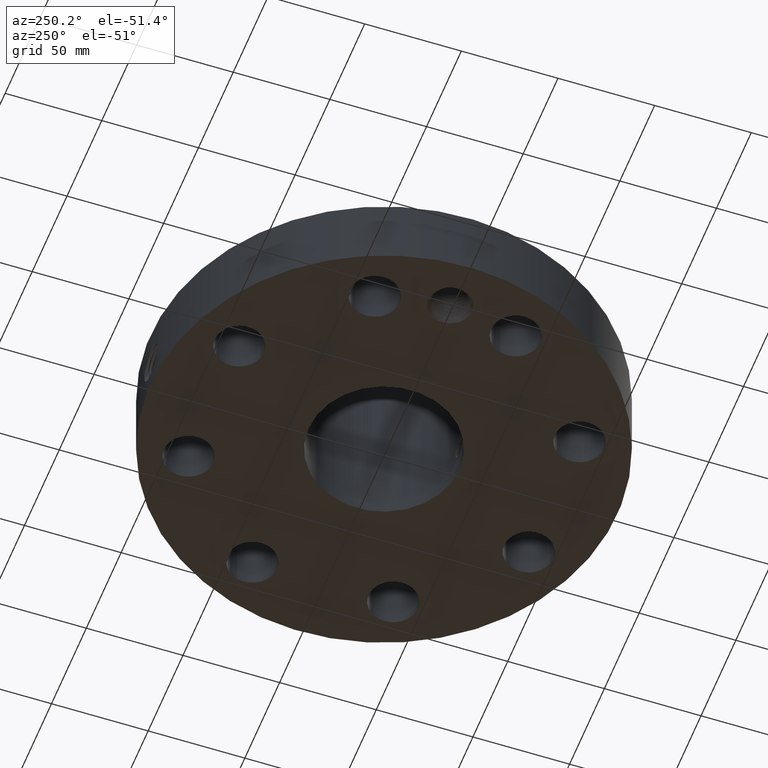
[diagram: clean part render]
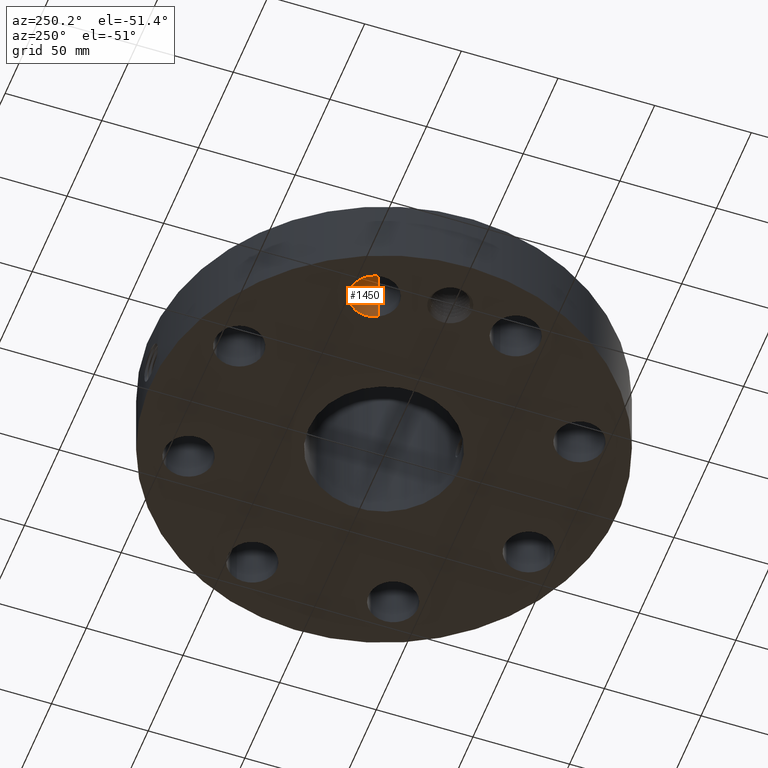
[diagram: same view with one face highlighted and labeled with its STEP entity id]
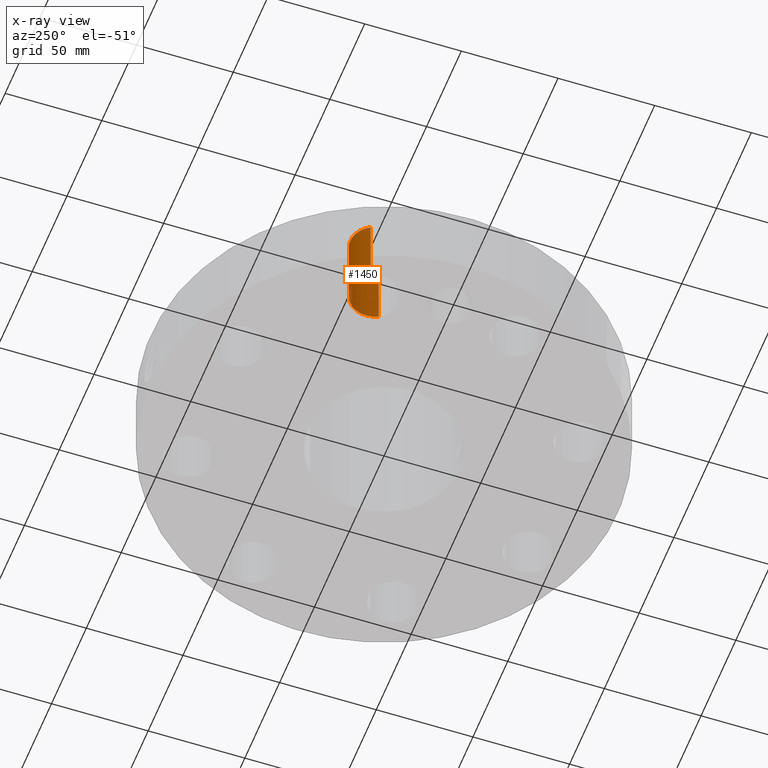
[diagram: x-ray of the same camera — body ghosted, the highlighted face saturated]
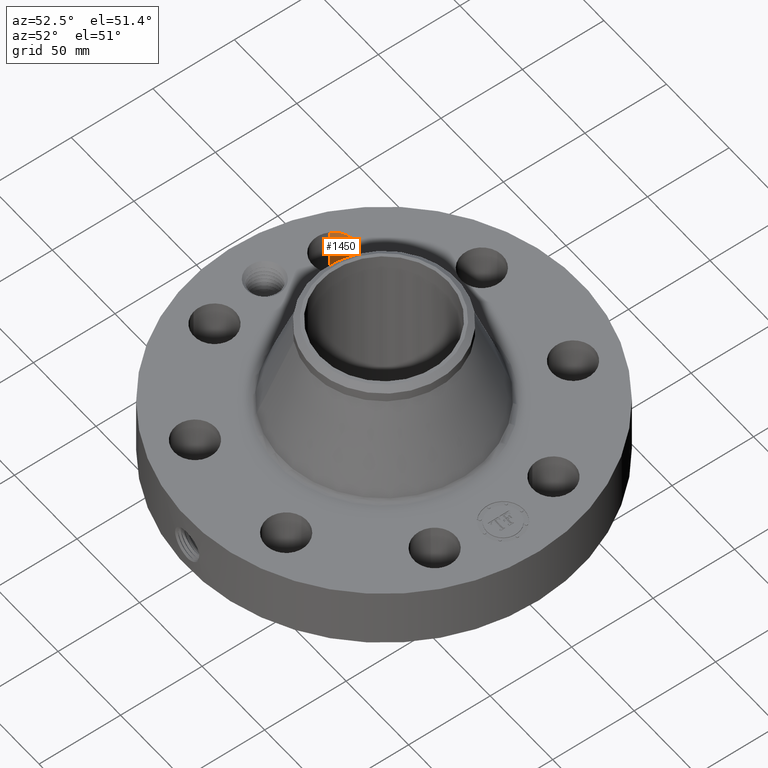
[diagram: same view with one face highlighted and labeled with its STEP entity id]
A machine part, auxiliary view. The second image highlights one B-rep face of the part: STEP entity #1450.
The next image is the same camera in x-ray: the body ghosted, the highlighted face saturated — about 3% of this face is hidden behind the body in this view.
A second angle (auxiliary view) of the same face is appended — the face is thin or edge-on in the first view.
In plain terms, the highlighted cylindrical surface (edge-blend (fillet) strip) has radius 12.7 mm, axis along (-0, 0, -1).
Its self-contained STEP definition (entity closure, byte-faithful):
#311=AXIS2_PLACEMENT_3D('Circle Axis2P3D',#309,#310,$) ;
#607=AXIS2_PLACEMENT_3D('Circle Axis2P3D',#605,#606,$) ;
#1425=AXIS2_PLACEMENT_3D('Cylinder Axis2P3D',#1422,#1423,#1424) ;
#304=CARTESIAN_POINT('Vertex',(-3.02575696598,1.19535010207,0.250000000001)) ;
#306=CARTESIAN_POINT('Vertex',(-3.90333952788,1.67477564068,0.250000000001)) ;
#309=CARTESIAN_POINT('Axis2P3D Location',(-3.46454824693,1.43506287137,0.250000000001)) ;
#605=CARTESIAN_POINT('Axis2P3D Location',(-3.46454824693,1.43506287137,1.75000000001)) ;
#609=CARTESIAN_POINT('Vertex',(-3.90333952788,1.67477564068,1.75000000001)) ;
#611=CARTESIAN_POINT('Vertex',(-3.02575696598,1.19535010207,1.75000000001)) ;
#1422=CARTESIAN_POINT('Axis2P3D Location',(-3.46454824693,1.43506287137,1.74606299213)) ;
#1427=CARTESIAN_POINT('Line Origine',(-3.02575696598,1.19535010207,1.)) ;
#1432=CARTESIAN_POINT('Line Origine',(-3.90333952788,1.67477564068,1.)) ;
#310=DIRECTION('Axis2P3D Direction',(0.,0.,-0.0393700787402)) ;
#606=DIRECTION('Axis2P3D Direction',(0.,0.,-0.0393700787402)) ;
#1423=DIRECTION('Axis2P3D Direction',(-0.,0.,-0.0393700787402)) ;
#1424=DIRECTION('Axis2P3D XDirection',(-0.0345504945626,0.0188750212049,0.)) ;
#1428=DIRECTION('Vector Direction',(0.,0.,-0.0393700787402)) ;
#1433=DIRECTION('Vector Direction',(0.,0.,-0.0393700787402)) ;
#1429=VECTOR('Line Direction',#1428,0.0393700787402) ;
#1434=VECTOR('Line Direction',#1433,0.0393700787402) ;
#1445=ORIENTED_EDGE('',*,*,#1436,.F.) ;
#1446=ORIENTED_EDGE('',*,*,#313,.T.) ;
#1447=ORIENTED_EDGE('',*,*,#1431,.T.) ;
#1448=ORIENTED_EDGE('',*,*,#613,.F.) ;
#1450=ADVANCED_FACE('PartBody',(#1449),#1426,.F.) ;
#312=CIRCLE('generated circle',#311,0.500000000002) ;
#608=CIRCLE('generated circle',#607,0.500000000002) ;
#1426=CYLINDRICAL_SURFACE('generated cylinder',#1425,0.500000000002) ;
#313=EDGE_CURVE('',#307,#305,#312,.T.) ;
#613=EDGE_CURVE('',#610,#612,#608,.T.) ;
#1431=EDGE_CURVE('',#305,#612,#1430,.F.) ;
#1436=EDGE_CURVE('',#307,#610,#1435,.F.) ;
#1444=EDGE_LOOP('',(#1445,#1446,#1447,#1448)) ;
#1449=FACE_OUTER_BOUND('',#1444,.T.) ;
#1430=LINE('Line',#1427,#1429) ;
#1435=LINE('Line',#1432,#1434) ;
#305=VERTEX_POINT('',#304) ;
#307=VERTEX_POINT('',#306) ;
#610=VERTEX_POINT('',#609) ;
#612=VERTEX_POINT('',#611) ;